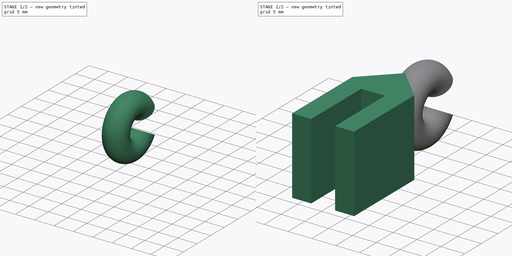
[diagram: build sequence overview — one tinted view per stage of 2, left to right]
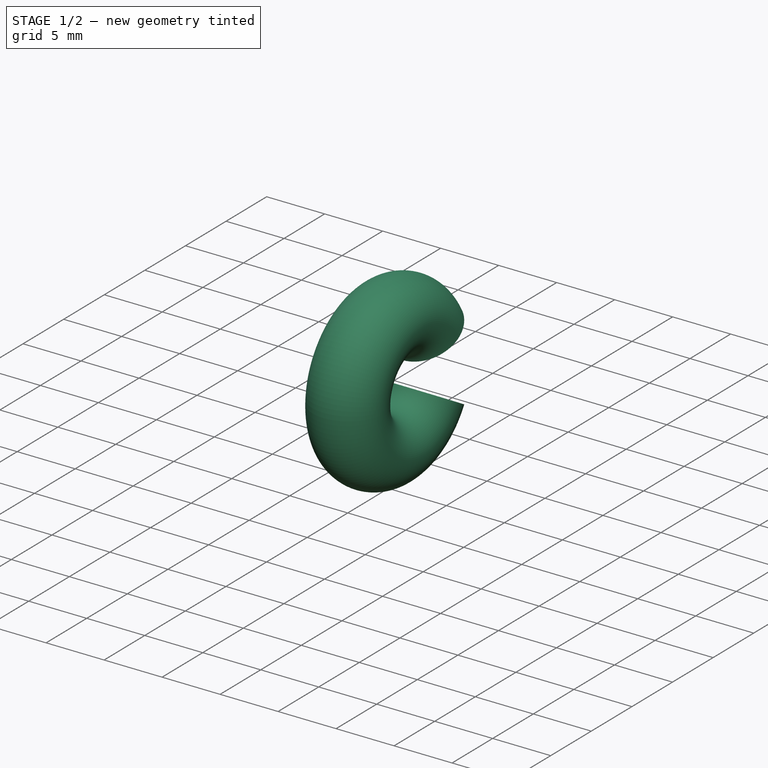
[diagram: stage 1 of 2 — iso view after this stage's code; geometry added in this stage tinted green]
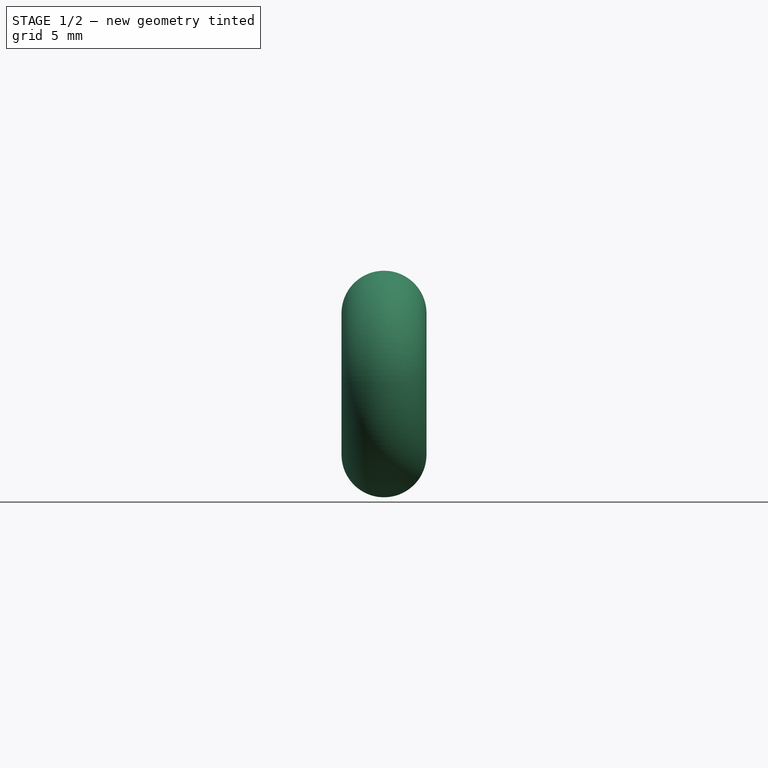
[diagram: stage 1 of 2 — front view after this stage's code; geometry added in this stage tinted green]
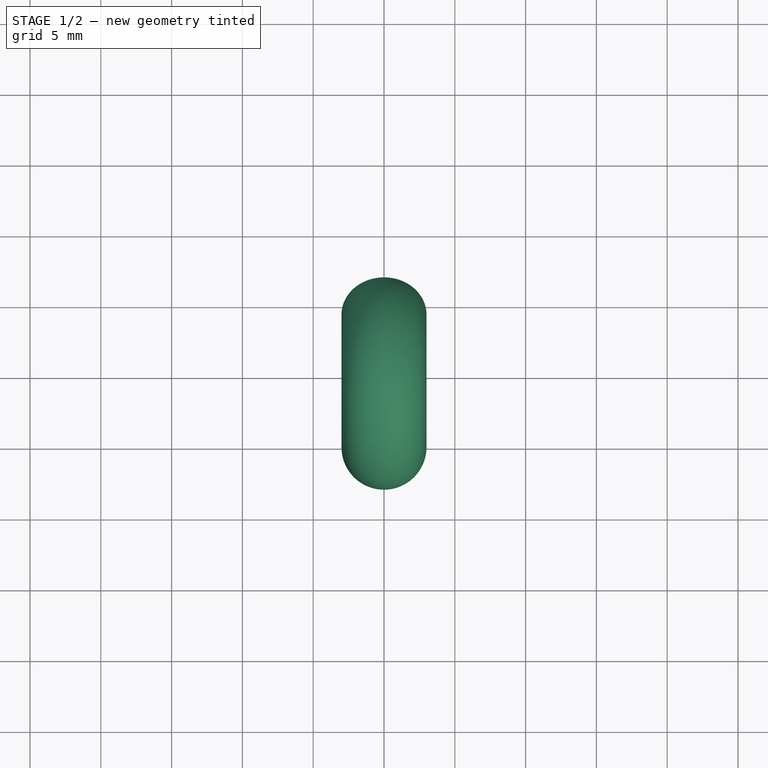
[diagram: stage 1 of 2 — top view after this stage's code; geometry added in this stage tinted green]
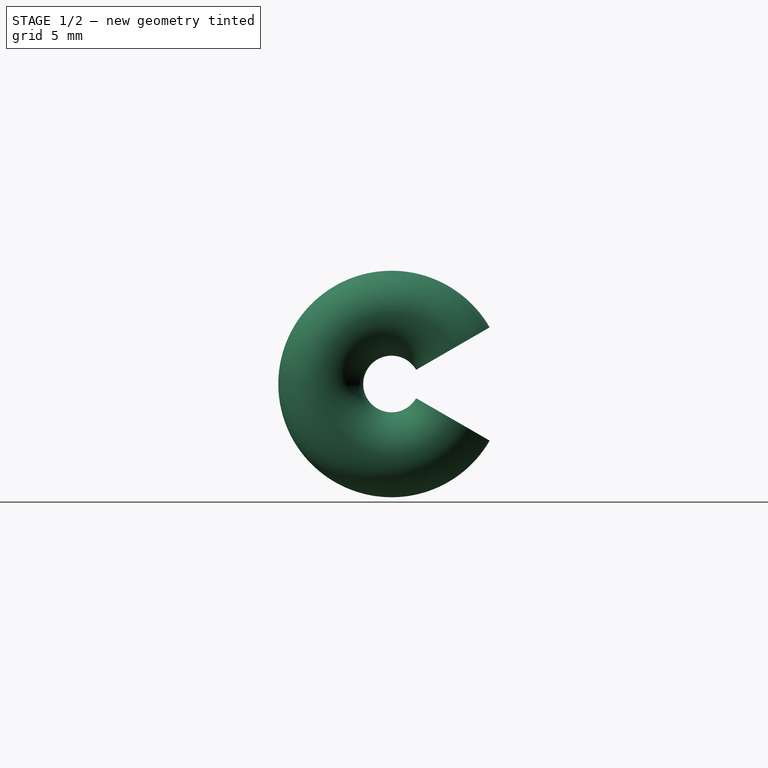
[diagram: stage 1 of 2 — right view after this stage's code; geometry added in this stage tinted green]
FCSTD DOCUMENT  (FreeCAD 0.18R4 (GitTag))
Label: FilamentGuide3
License: All rights reserved
LicenseURL: http://en.wikipedia.org/wiki/All_rights_reserved
objects: Sketcher::SketchObject×3, Spreadsheet::Sheet×1, PartDesign::Pad×1, PartDesign::Plane×1, PartDesign::Body×1, Part::Sweep×1
note: 8 computed .brp shape members not serialized (recipe doc carries the construction recipe); baked Part::Feature solids carry a one-line shape summary decoded from their .brp

FEATURE [Sketcher::SketchObject] Sketch001
  MapMode = 5
  Placement = pos=(0,0,0) rot=(0.57735,0.57735,0.57735;2.0944rad)
  Support = -> [YZ_Plane]
  expr: Constraints[4] = Dimensions.WallWidth / 2 - Dimensions.TorusThreadOpening / 2
  expr: Constraints[3] = Dimensions.WallWidth / 2 - Dimensions.TorusDiscRadius
  expr: Constraints[2] = Dimensions.TorusThreadOpening
  expr: Constraints[1] = Dimensions.WallWidth / 2 - Dimensions.TorusDiscRadius
  expr: Constraints[0] = Dimensions.WallWidth / 2
  sketch-geometry (1):
    g0: ArcOfCircle CenterX=5 CenterY=8 CenterZ=0 NormalX=0 NormalY=0 NormalZ=1 AngleXU=0 Radius=5 StartAngle=0.523599 EndAngle=5.75959
  constraints (5):
    c: DistanceY(g-1,g0) = 8
    c: Radius(g0) = 5
    c: DistanceY(g0,g0) = 5
    c: DistanceX(g-1,g0) = 5
    c: DistanceY(g-1,g0) = 5.5
FEATURE [PartDesign::Plane] DatumPlane
  Length = 25.8568
  MapMode = 1
  Placement = pos=(-3e-16,9.33013,10.5) rot=(1,0,0;0.523599rad)
  ResizeMode = 0
  Support = -> [Sketch001]
  Width = 48.7347
FEATURE [Sketcher::SketchObject] Sketch002
  MapMode = 5
  Placement = pos=(-3e-16,9.33013,10.5) rot=(1,0,0;0.523599rad)
  Support = -> [DatumPlane]
  expr: Constraints[1] = Dimensions.TorusDiscRadius
  sketch-geometry (1):
    g0: Circle CenterX=0 CenterY=0 CenterZ=0 NormalX=0 NormalY=0 NormalZ=1 AngleXU=0 Radius=3
  constraints (2):
    c: Coincident(g0,g-1)
    c: Radius(g0) = 3
FEATURE [PartDesign::Body] Body
  Group = -> [Sketch,Pad,Sketch001,DatumPlane,Sketch002]
  Origin = -> Origin
  Tip = -> Pad
FEATURE [Part::Sweep] Sweep
  Frenet = true
  Sections = -> [Sketch002]
  Solid = true
  Spine = -> Sketch001
  Transition = 2
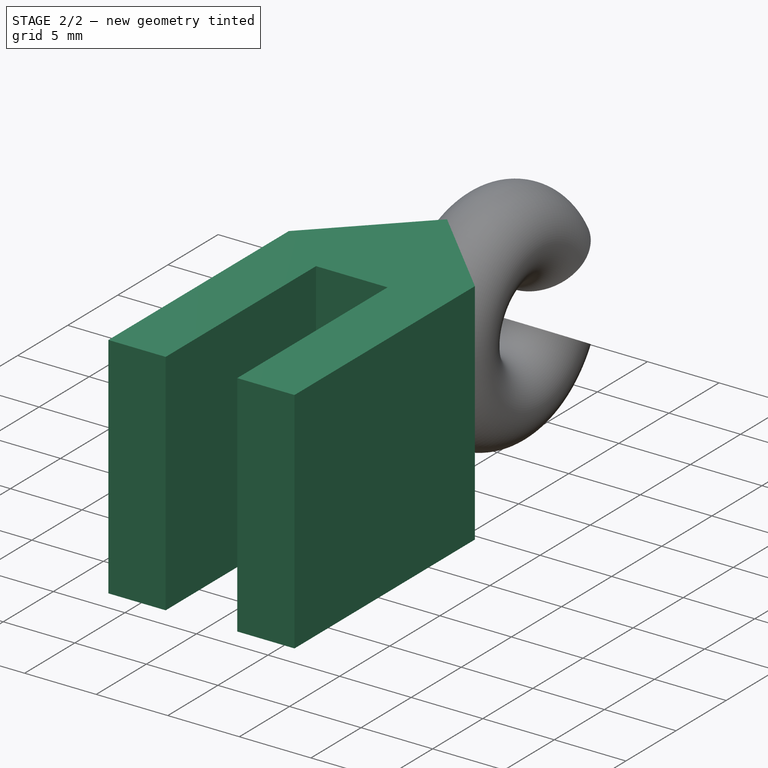
[diagram: stage 2 of 2 — iso view after this stage's code; geometry added in this stage tinted green]
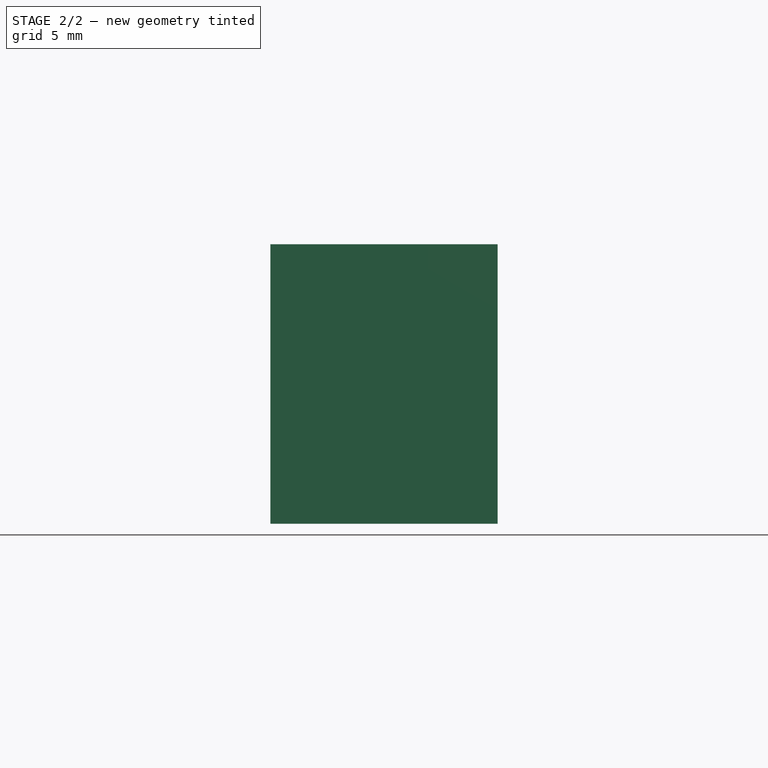
[diagram: stage 2 of 2 — front view after this stage's code; geometry added in this stage tinted green]
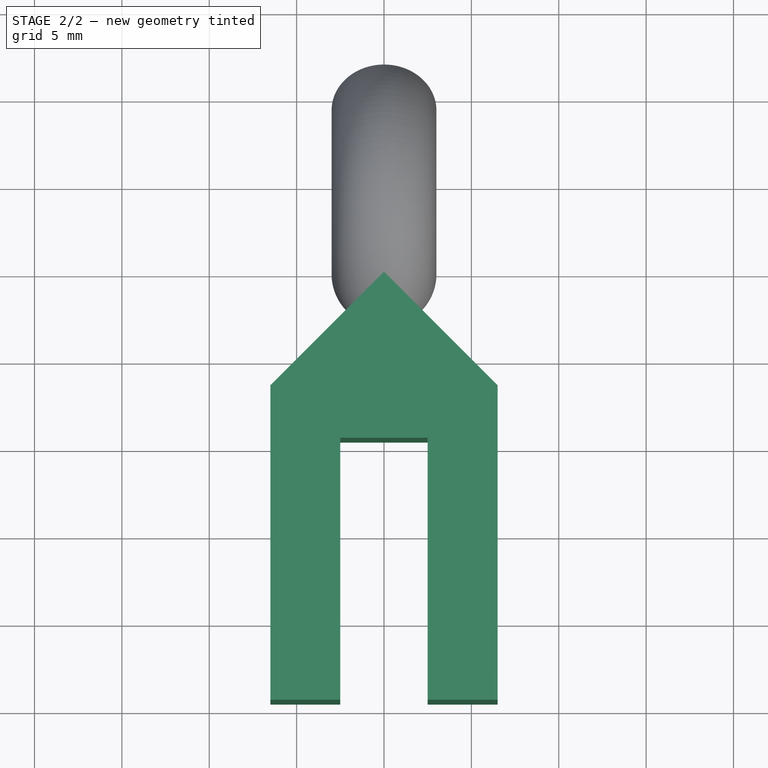
[diagram: stage 2 of 2 — top view after this stage's code; geometry added in this stage tinted green]
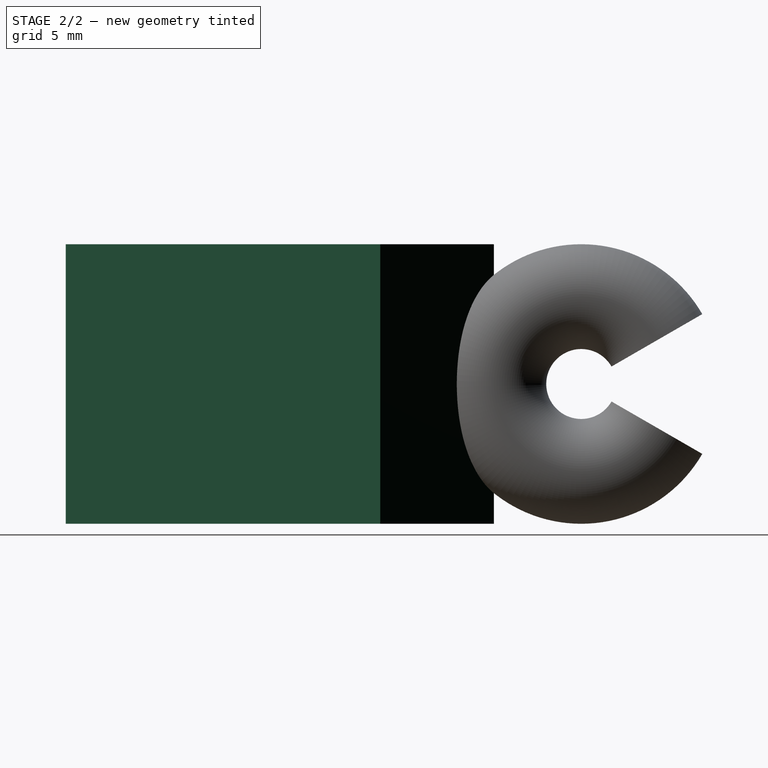
[diagram: stage 2 of 2 — right view after this stage's code; geometry added in this stage tinted green]
FEATURE [Spreadsheet::Sheet] Spreadsheet  label="Dimensions"
  cells = A1=WallGap; B1(WallGap)==5mm; A2=WallThickness; B2(WallThickness)==4mm; A3=WallWidth; B3(WallWidth)==16mm; A4=WallHeightInner; B4(WallHeightInner)==15mm; A5=WallHeightOuter; B5(WallHeightOuter)==18mm; A6=TorusRadius; B6(TorusRadius)==6mm; A7=TorusDiscRadius; B7(TorusDiscRadius)==3mm; A8=TorusDiscAngle1; B8(TorusDiscAngle1)==0deg; A9=TorusDiscAngle2; B9(TorusDiscAngle2)==0deg; A10=TorusArcAngle; B10(TorusArcAngle)==330deg; A11=TorusThreadOpening; B11(TorusThreadOpening)==5mm
FEATURE [Sketcher::SketchObject] Sketch
  MapMode = 5
  Support = -> [XY_Plane]
  expr: Constraints[21] = Dimensions.WallHeightOuter
  expr: Constraints[23] = Dimensions.WallHeightInner
  expr: Constraints[19] = Dimensions.WallGap
  expr: Constraints[18] = Dimensions.WallThickness
  expr: Constraints[17] = Dimensions.WallThickness
  sketch-geometry (9):
    g0: LineSegment StartX=-6.5 StartY=-6.5 StartZ=0 EndX=0 EndY=0 EndZ=0
    g1: LineSegment StartX=0 StartY=0 StartZ=0 EndX=6.5 EndY=-6.5 EndZ=0
    g2: LineSegment StartX=6.5 StartY=-6.5 StartZ=0 EndX=6.5 EndY=-24.5 EndZ=0
    g3: LineSegment StartX=6.5 StartY=-24.5 StartZ=0 EndX=2.5 EndY=-24.5 EndZ=0
    g4: LineSegment StartX=2.5 StartY=-24.5 StartZ=0 EndX=2.5 EndY=-9.5 EndZ=0
    g5: LineSegment StartX=2.5 StartY=-9.5 StartZ=0 EndX=-2.5 EndY=-9.5 EndZ=0
    g6: LineSegment StartX=-2.5 StartY=-9.5 StartZ=0 EndX=-2.5 EndY=-24.5 EndZ=0
    g7: LineSegment StartX=-2.5 StartY=-24.5 StartZ=0 EndX=-6.5 EndY=-24.5 EndZ=0
    g8: LineSegment StartX=-6.5 StartY=-24.5 StartZ=0 EndX=-6.5 EndY=-6.5 EndZ=0
  constraints (26):
    c: Coincident(g0,g1)
    c: Coincident(g1,g2)
    c: Vertical(g2)
    c: Coincident(g2,g3)
    c: Coincident(g3,g4)
    c: Coincident(g4,g5)
    c: Coincident(g5,g6)
    c: Coincident(g6,g7)
    c: Coincident(g7,g8)
    c: Coincident(g8,g0)
    c: Vertical(g8)
    c: Vertical(g6)
    c: Vertical(g4)
    c: Horizontal(g3)
    c: Horizontal(g7)
    c: Horizontal(g5)
    c: Horizontal(g1,g0)
    c: DistanceX(g3,g3) = 4
    c: DistanceX(g7,g7) = 4
    c: DistanceX(g5,g5) = 5
    c: Coincident(g0,g-1)
    c: DistanceY(g2,g2) = 18
    c: Horizontal(g3,g6)
    c: DistanceY(g6,g6) = 15
    c: Perpendicular(g0,g1)
    c: Equal(g0,g1)
FEATURE [PartDesign::Pad] Pad
  Length = 16
  Length2 = 100
  Profile = -> Sketch
  Type = 0
  expr: Length = Dimensions.WallWidth
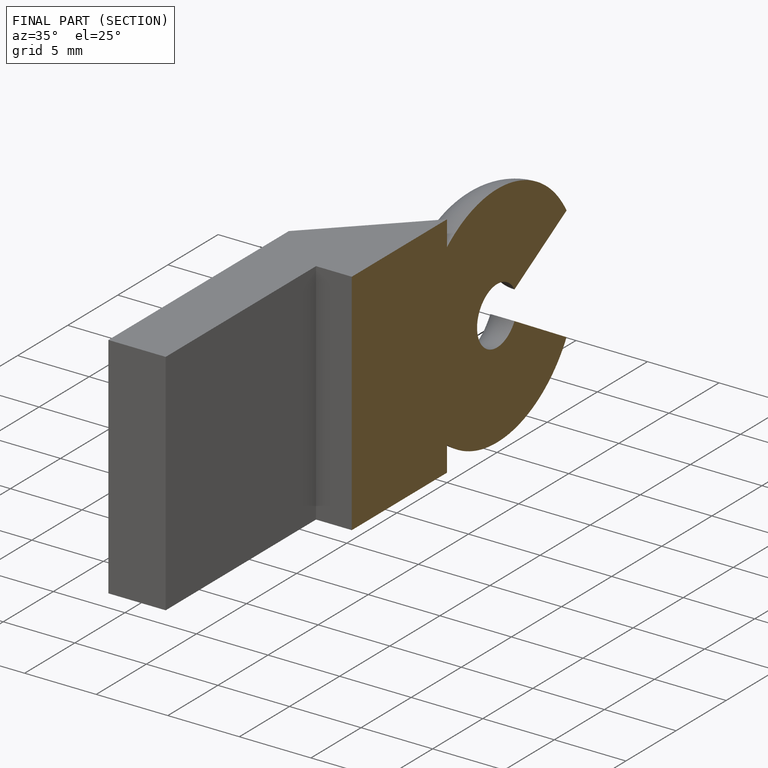
[diagram: finished part — half-section view (interior)]
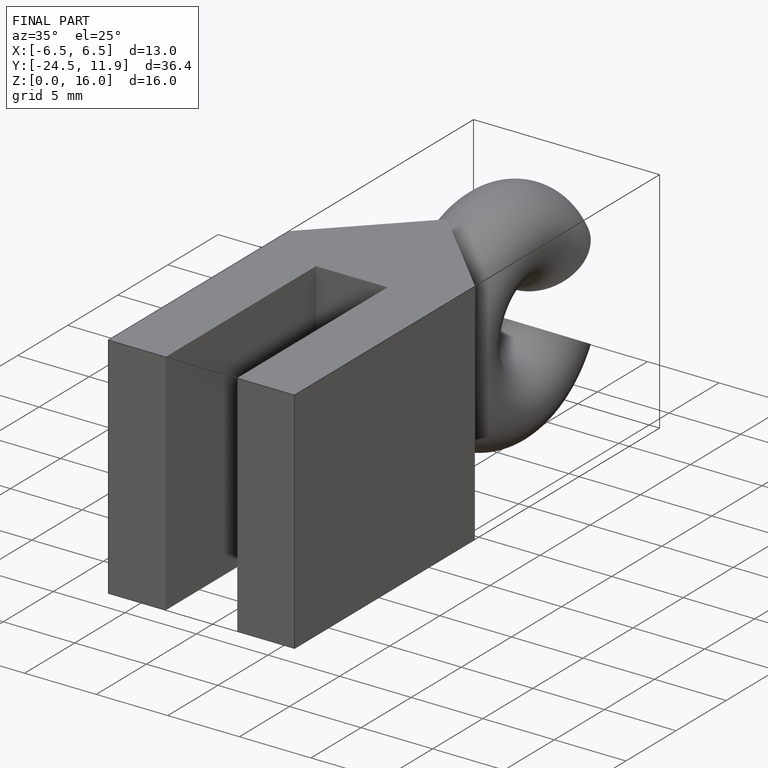
[diagram: finished part — iso view with bounding-box wireframe]
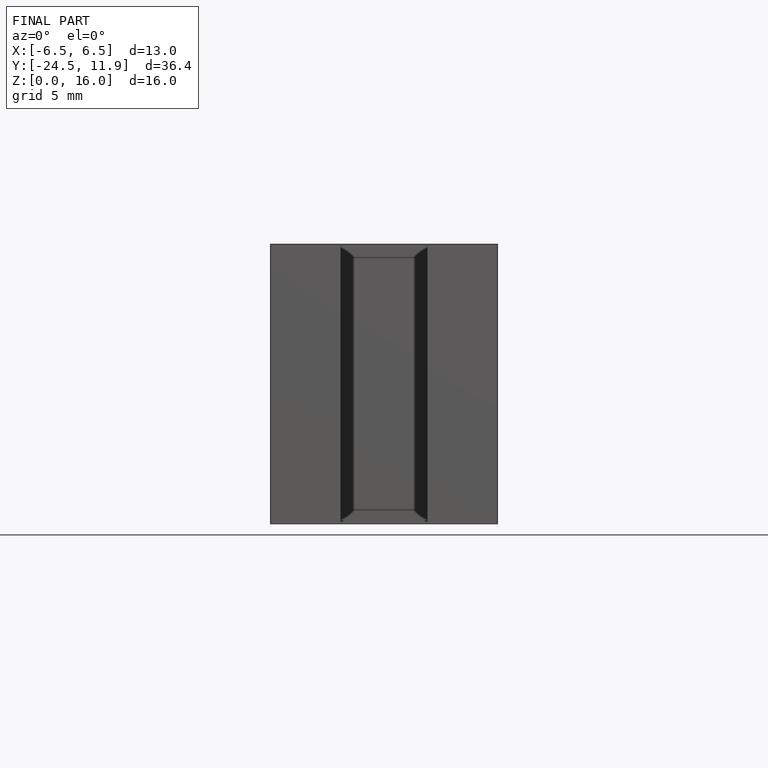
[diagram: finished part — front view with bounding-box wireframe]
